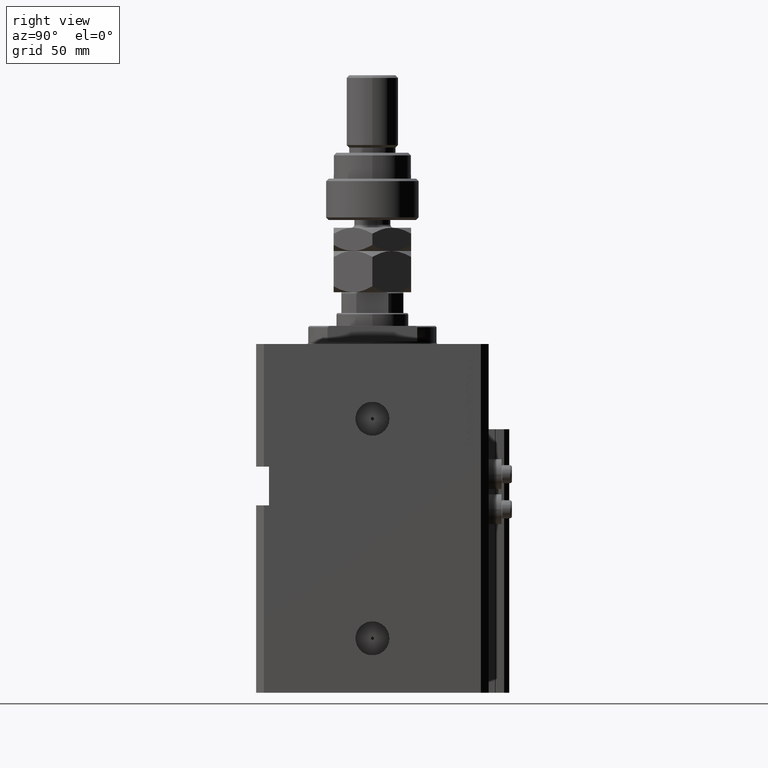
[diagram: clean part render]
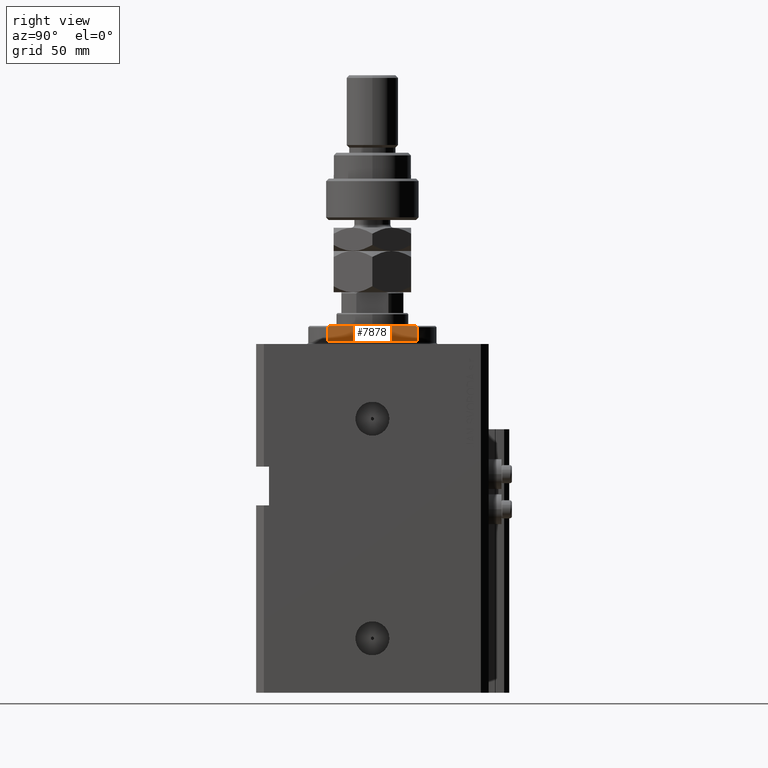
[diagram: same view with one face highlighted and labeled with its STEP entity id]
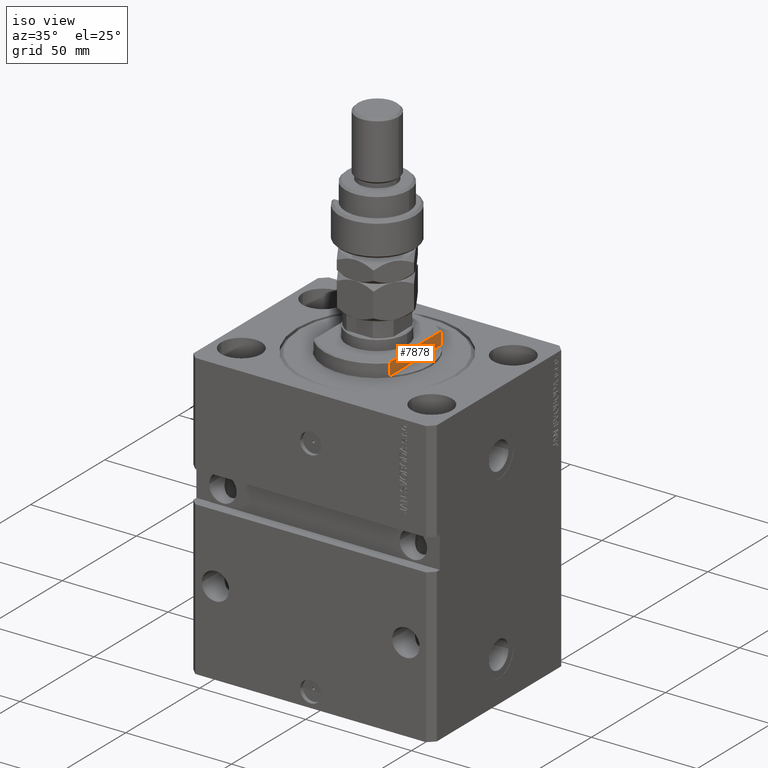
[diagram: same view with one face highlighted and labeled with its STEP entity id]
A machine part, right view. The second image highlights one B-rep face of the part: STEP entity #7878.
A second angle (iso view) of the same face is appended — the face is thin or edge-on in the first view.
In plain terms, the highlighted planar face has unit normal (-1, 0, 0).
Its self-contained STEP definition (entity closure, byte-faithful):
#478 = ORIENTED_EDGE ( 'NONE', *, *, #29898, .F. ) ;
#1450 = CARTESIAN_POINT ( 'NONE',  ( -18.00000000000000000, 17.34935157289747920, -1.000000000000000000 ) ) ;
#1622 = CARTESIAN_POINT ( 'NONE',  ( -18.00000000000000000, -41.24318125460256113, -7.000000000000000000 ) ) ;
#2010 = CARTESIAN_POINT ( 'NONE',  ( -18.00000000000000000, -17.34935157289747920, -6.499999999999956479 ) ) ;
#2043 = VECTOR ( 'NONE', #19051, 1000.000000000000000 ) ;
#2217 = FACE_OUTER_BOUND ( 'NONE', #13664, .T. ) ;
#4998 = VERTEX_POINT ( 'NONE', #9758 ) ;
#5089 = LINE ( 'NONE', #1622, #25078 ) ;
#6347 = CARTESIAN_POINT ( 'NONE',  ( -18.00000000000000000, 16.86453887646376515, -6.834627585342919254 ) ) ;
#7878 = ADVANCED_FACE ( 'NONE', ( #2217 ), #31431, .F. ) ;
#8226 = CARTESIAN_POINT ( 'NONE',  ( -18.00000000000000000, 17.34935157289748986, -6.499999999999965361 ) ) ;
#8989 = ORIENTED_EDGE ( 'NONE', *, *, #14487, .T. ) ;
#9185 = EDGE_CURVE ( 'NONE', #29842, #4998, #5089, .T. ) ;
#9758 = CARTESIAN_POINT ( 'NONE',  ( -18.00000000000000000, -16.62077013859462227, -7.000000000000000000 ) ) ;
#10139 = B_SPLINE_CURVE_WITH_KNOTS ( 'NONE', 3,
 ( #50128, #25429, #37900, #2010 ),
 .UNSPECIFIED., .F., .F.,
 ( 4, 4 ),
 ( 0.08262823419570358707, 0.08350100171199341392 ),
 .UNSPECIFIED. ) ;
#10395 = EDGE_CURVE ( 'NONE', #36514, #29842, #50532, .T. ) ;
#13664 = EDGE_LOOP ( 'NONE', ( #26750, #21560, #8989, #478, #28431, #46046 ) ) ;
#14487 = EDGE_CURVE ( 'NONE', #4998, #28151, #10139, .T. ) ;
#15043 = LINE ( 'NONE', #42968, #31652 ) ;
#17634 = VERTEX_POINT ( 'NONE', #1450 ) ;
#18215 = DIRECTION ( 'NONE',  ( 0.000000000000000000, 0.000000000000000000, -1.000000000000000000 ) ) ;
#18257 = EDGE_CURVE ( 'NONE', #17634, #46322, #15043, .T. ) ;
#19051 = DIRECTION ( 'NONE',  ( -0.000000000000000000, -0.000000000000000000, 1.000000000000000000 ) ) ;
#21560 = ORIENTED_EDGE ( 'NONE', *, *, #9185, .T. ) ;
#22765 = DIRECTION ( 'NONE',  ( -0.000000000000000000, -1.000000000000000000, -0.000000000000000000 ) ) ;
#24285 = AXIS2_PLACEMENT_3D ( 'NONE', #51893, #27452, #47648 ) ;
#25078 = VECTOR ( 'NONE', #44967, 1000.000000000000000 ) ;
#25429 = CARTESIAN_POINT ( 'NONE',  ( -18.00000000000000000, -16.86466398118529497, -6.834542714452327417 ) ) ;
#26750 = ORIENTED_EDGE ( 'NONE', *, *, #10395, .T. ) ;
#27452 = DIRECTION ( 'NONE',  ( 1.000000000000000000, 0.000000000000000000, 0.000000000000000000 ) ) ;
#28151 = VERTEX_POINT ( 'NONE', #30237 ) ;
#28333 = LINE ( 'NONE', #31277, #2043 ) ;
#28431 = ORIENTED_EDGE ( 'NONE', *, *, #18257, .F. ) ;
#29842 = VERTEX_POINT ( 'NONE', #30447 ) ;
#29898 = EDGE_CURVE ( 'NONE', #46322, #28151, #51178, .T. ) ;
#30237 = CARTESIAN_POINT ( 'NONE',  ( -18.00000000000000000, -17.34935157289747920, -6.499999999999956479 ) ) ;
#30277 = CARTESIAN_POINT ( 'NONE',  ( -18.00000000000000000, 17.34935157289748986, -6.499999999999965361 ) ) ;
#30447 = CARTESIAN_POINT ( 'NONE',  ( -18.00000000000000000, 16.62077013859462227, -7.000000000000000000 ) ) ;
#31239 = CARTESIAN_POINT ( 'NONE',  ( -18.00000000000000000, -17.34935157289747920, -7.000000000000000000 ) ) ;
#31277 = CARTESIAN_POINT ( 'NONE',  ( -18.00000000000000000, 17.34935157289747920, -7.000000000000000000 ) ) ;
#31431 = PLANE ( 'NONE',  #24285 ) ;
#31652 = VECTOR ( 'NONE', #22765, 1000.000000000000000 ) ;
#31961 = VECTOR ( 'NONE', #18215, 1000.000000000000000 ) ;
#36514 = VERTEX_POINT ( 'NONE', #8226 ) ;
#37900 = CARTESIAN_POINT ( 'NONE',  ( -18.00000000000000000, -17.10749533145902745, -6.667841958512572553 ) ) ;
#38776 = CARTESIAN_POINT ( 'NONE',  ( -18.00000000000000000, 16.62077013859462227, -7.000000000000000000 ) ) ;
#42753 = CARTESIAN_POINT ( 'NONE',  ( -18.00000000000000000, 17.10737464676705955, -6.667925710558589181 ) ) ;
#42968 = CARTESIAN_POINT ( 'NONE',  ( -18.00000000000000000, -41.24318125460256113, -1.000000000000000000 ) ) ;
#44967 = DIRECTION ( 'NONE',  ( -0.000000000000000000, -1.000000000000000000, -0.000000000000000000 ) ) ;
#46046 = ORIENTED_EDGE ( 'NONE', *, *, #47660, .F. ) ;
#46322 = VERTEX_POINT ( 'NONE', #50752 ) ;
#47648 = DIRECTION ( 'NONE',  ( 0.000000000000000000, 0.000000000000000000, -1.000000000000000000 ) ) ;
#47660 = EDGE_CURVE ( 'NONE', #36514, #17634, #28333, .T. ) ;
#50128 = CARTESIAN_POINT ( 'NONE',  ( -18.00000000000000000, -16.62077013859462227, -7.000000000000000000 ) ) ;
#50532 = B_SPLINE_CURVE_WITH_KNOTS ( 'NONE', 3,
 ( #30277, #42753, #6347, #38776 ),
 .UNSPECIFIED., .F., .F.,
 ( 4, 4 ),
 ( 0.04589228951331350559, 0.04678015196826825622 ),
 .UNSPECIFIED. ) ;
#50752 = CARTESIAN_POINT ( 'NONE',  ( -18.00000000000000000, -17.34935157289747920, -1.000000000000000000 ) ) ;
#51178 = LINE ( 'NONE', #31239, #31961 ) ;
#51893 = CARTESIAN_POINT ( 'NONE',  ( -18.00000000000000000, -41.24318125460256113, -1.000000000000000000 ) ) ;